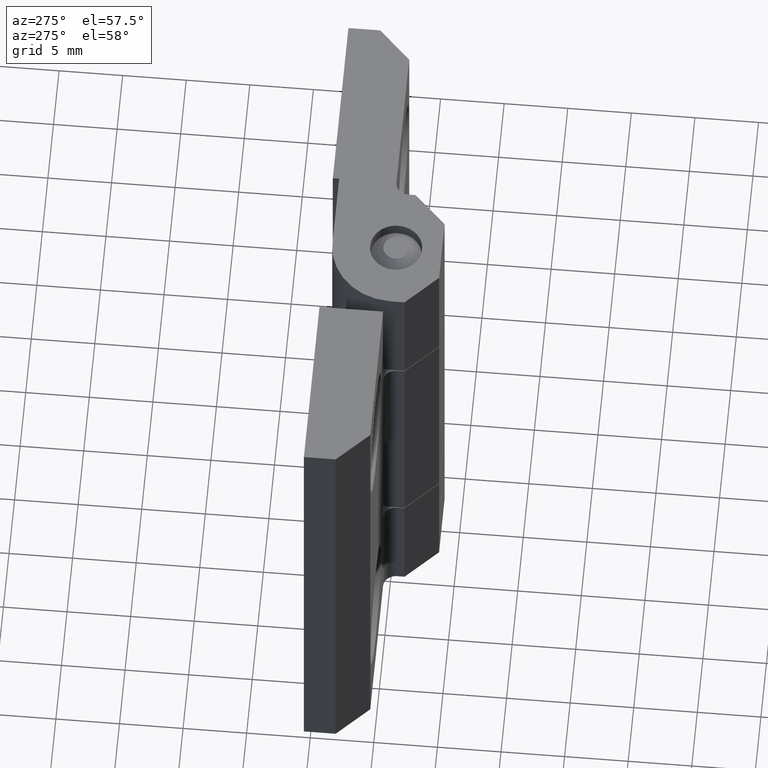
[diagram: clean part render]
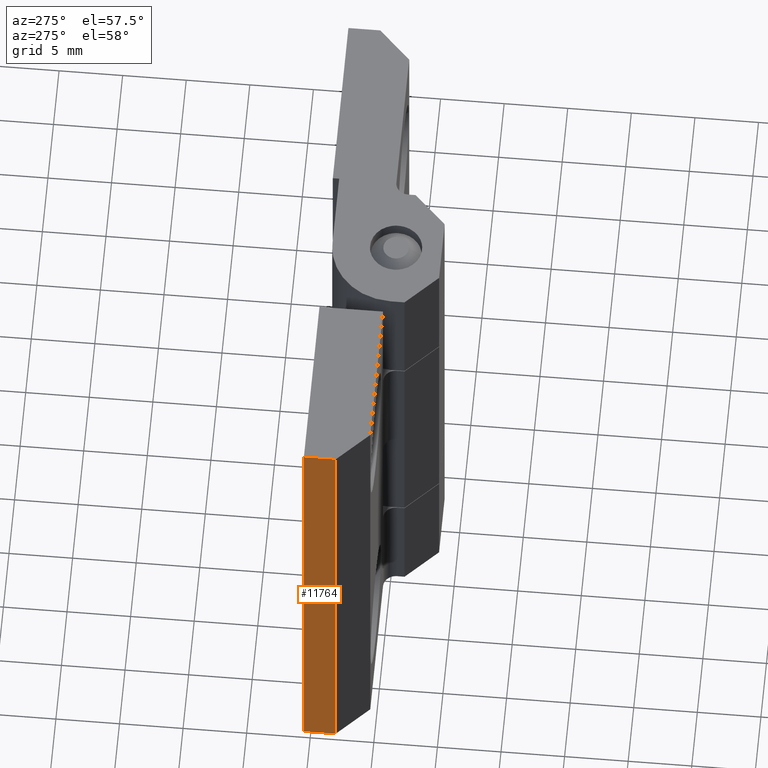
[diagram: same view with one face highlighted and labeled with its STEP entity id]
A machine part, auxiliary view. The second image highlights one B-rep face of the part: STEP entity #11764.
In plain terms, the highlighted face is a freeform B-spline surface patch.
Its self-contained STEP definition (entity closure, byte-faithful):
#11508=CARTESIAN_POINT('',(-20.000000356235450,3.000000142490740,0.0));
#11509=VERTEX_POINT('',#11508);
#11515=CARTESIAN_POINT('',(-20.000000356235649,5.500000261234371,0.0));
#11516=VERTEX_POINT('',#11515);
#11517=CARTESIAN_POINT('',(-20.000000356235649,5.500000261234371,0.0));
#11518=CARTESIAN_POINT('',(-20.000000356235450,3.000000142490740,0.0));
#11519=QUASI_UNIFORM_CURVE('',1,(#11517,#11518),.UNSPECIFIED.,.F.,.U.);
#11520=EDGE_CURVE('',#11516,#11509,#11519,.T.);
#11557=CARTESIAN_POINT('',(-20.000000356235649,5.500000261234371,40.000001899897953));
#11558=VERTEX_POINT('',#11557);
#11564=CARTESIAN_POINT('',(-20.000000356235450,3.000000142490740,40.000001899897953));
#11565=VERTEX_POINT('',#11564);
#11566=CARTESIAN_POINT('',(-20.000000356235649,5.500000261234371,40.000001899897953));
#11567=CARTESIAN_POINT('',(-20.000000356235450,3.000000142490740,40.000001899897953));
#11568=QUASI_UNIFORM_CURVE('',1,(#11566,#11567),.UNSPECIFIED.,.F.,.U.);
#11569=EDGE_CURVE('',#11558,#11565,#11568,.T.);
#11741=CARTESIAN_POINT('',(-20.000000356235450,3.000000142490740,40.000001899897953));
#11742=CARTESIAN_POINT('',(-20.000000356235450,3.000000142490740,0.0));
#11743=QUASI_UNIFORM_CURVE('',1,(#11741,#11742),.UNSPECIFIED.,.F.,.U.);
#11744=EDGE_CURVE('',#11565,#11509,#11743,.T.);
#11749=CARTESIAN_POINT('',(-20.000000356235649,2.875125226346073,-1.997999874464038));
#11750=CARTESIAN_POINT('',(-20.000000356235649,5.624875512655181,-1.997999874464038));
#11751=CARTESIAN_POINT('',(-20.000000356235649,2.875125226346073,41.997999986222567));
#11752=CARTESIAN_POINT('',(-20.000000356235649,5.624875512655181,41.997999986222567));
#11753=B_SPLINE_SURFACE_WITH_KNOTS('',1,1,((#11749,#11751),(#11750,#11752)),.UNSPECIFIED.,.F.,.F.,.U.,(2,2),(2,2),(0.0,2.749750286309108),(0.0,43.995999860686602),.UNSPECIFIED.);
#11754=ORIENTED_EDGE('',*,*,#11520,.T.);
#11755=ORIENTED_EDGE('',*,*,#11744,.F.);
#11756=ORIENTED_EDGE('',*,*,#11569,.F.);
#11757=CARTESIAN_POINT('',(-20.000000356235649,5.500000261234371,40.000001899897953));
#11758=CARTESIAN_POINT('',(-20.000000356235649,5.500000261234371,0.0));
#11759=QUASI_UNIFORM_CURVE('',1,(#11757,#11758),.UNSPECIFIED.,.F.,.U.);
#11760=EDGE_CURVE('',#11558,#11516,#11759,.T.);
#11761=ORIENTED_EDGE('',*,*,#11760,.T.);
#11762=EDGE_LOOP('',(#11754,#11755,#11756,#11761));
#11763=FACE_OUTER_BOUND('',#11762,.T.);
#11764=ADVANCED_FACE('',(#11763),#11753,.F.);